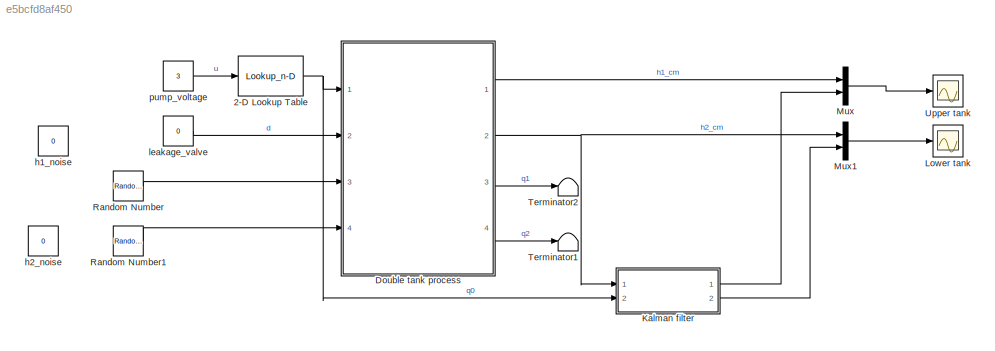
MODEL slx_e5bcfd8af450
KIND model
CONFIG AbsTol = auto
CONFIG EnableMultiTasking = off
CONFIG FixedStep = auto
CONFIG MaxStep = auto
CONFIG MinStep = auto
CONFIG RelTol = 1e-3
CONFIG SampleTimeConstraint = Unconstrained
CONFIG Solver = VariableStepAuto
CONFIG SolverName = VariableStepAuto
CONFIG StartTime = 0.0
CONFIG StopTime = 10.0
BLOCK [Lookup_n-D] 2-D Lookup Table
  BreakpointsForDimension1 = x
  BreakpointsForDimension2 = [1:3]
  NumberOfTableDimensions = 1
  Ports = [1, 1]
  RndMeth = Simplest
  Table = y
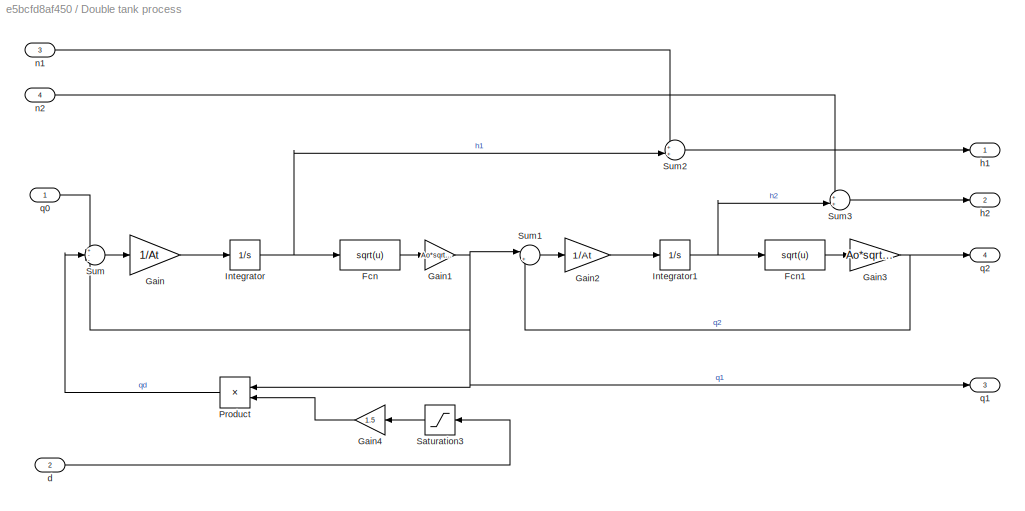
BLOCK [SubSystem] Double tank process
  Ports = [4, 4]
  RequestExecContextInheritance = off
BLOCK [Fcn] Double tank process/Fcn
  Expr = sqrt(u)
BLOCK [Fcn] Double tank process/Fcn1
  Expr = sqrt(u)
BLOCK [Gain] Double tank process/Gain
  Gain = 1/At
  OutDataTypeStr = Inherit: Inherit via internal rule
  ParamDataTypeStr = Inherit: Inherit via internal rule
  SaturateOnIntegerOverflow = off
BLOCK [Gain] Double tank process/Gain1
  Gain = Ao*sqrt(2*981)
  OutDataTypeStr = Inherit: Inherit via internal rule
  ParamDataTypeStr = Inherit: Inherit via internal rule
  SaturateOnIntegerOverflow = off
BLOCK [Gain] Double tank process/Gain2
  Gain = 1/At
  OutDataTypeStr = Inherit: Inherit via internal rule
  ParamDataTypeStr = Inherit: Inherit via internal rule
  SaturateOnIntegerOverflow = off
BLOCK [Gain] Double tank process/Gain3
  Gain = Ao*sqrt(2*981)
  OutDataTypeStr = Inherit: Inherit via internal rule
  ParamDataTypeStr = Inherit: Inherit via internal rule
  SaturateOnIntegerOverflow = off
BLOCK [Gain] Double tank process/Gain4
  Gain = 1.5
  OutDataTypeStr = Inherit: Inherit via internal rule
  ParamDataTypeStr = Inherit: Inherit via internal rule
  SaturateOnIntegerOverflow = off
BLOCK [Integrator] Double tank process/Integrator
  LimitOutput = on
  LowerSaturationLimit = 0
  Ports = [1, 1]
  UpperSaturationLimit = hmax
BLOCK [Integrator] Double tank process/Integrator1
  LimitOutput = on
  LowerSaturationLimit = 0
  Ports = [1, 1]
  UpperSaturationLimit = hmax
BLOCK [Product] Double tank process/Product
  InputSameDT = off
  OutDataTypeStr = Inherit: Inherit via internal rule
  Ports = [2, 1]
  SaturateOnIntegerOverflow = off
BLOCK [Saturate] Double tank process/Saturation3
  InputPortMap = u0
  LowerLimit = 0
  Ports = [1, 1]
  UpperLimit = 1
BLOCK [Sum] Double tank process/Sum
  IconShape = round
  InputSameDT = off
  Inputs = +--
  OutDataTypeStr = Inherit: Inherit via internal rule
  Ports = [3, 1]
  SaturateOnIntegerOverflow = off
BLOCK [Sum] Double tank process/Sum1
  IconShape = round
  InputSameDT = off
  Inputs = |+-
  OutDataTypeStr = Inherit: Inherit via internal rule
  Ports = [2, 1]
  SaturateOnIntegerOverflow = off
BLOCK [Sum] Double tank process/Sum2
  IconShape = round
  InputSameDT = off
  Inputs = ++|
  OutDataTypeStr = Inherit: Inherit via internal rule
  Ports = [2, 1]
  SaturateOnIntegerOverflow = off
BLOCK [Sum] Double tank process/Sum3
  IconShape = round
  InputSameDT = off
  Inputs = ++|
  OutDataTypeStr = Inherit: Inherit via internal rule
  Ports = [2, 1]
  SaturateOnIntegerOverflow = off
BLOCK [Inport] Double tank process/d
  IconDisplay = Port number
  Port = 2
BLOCK [Outport] Double tank process/h1
  IconDisplay = Port number
BLOCK [Outport] Double tank process/h2
  IconDisplay = Port number
  Port = 2
BLOCK [Inport] Double tank process/n1
  IconDisplay = Port number
  Port = 3
BLOCK [Inport] Double tank process/n2
  IconDisplay = Port number
  Port = 4
BLOCK [Inport] Double tank process/q0
  IconDisplay = Port number
BLOCK [Outport] Double tank process/q1
  IconDisplay = Port number
  Port = 3
BLOCK [Outport] Double tank process/q2
  IconDisplay = Port number
  Port = 4
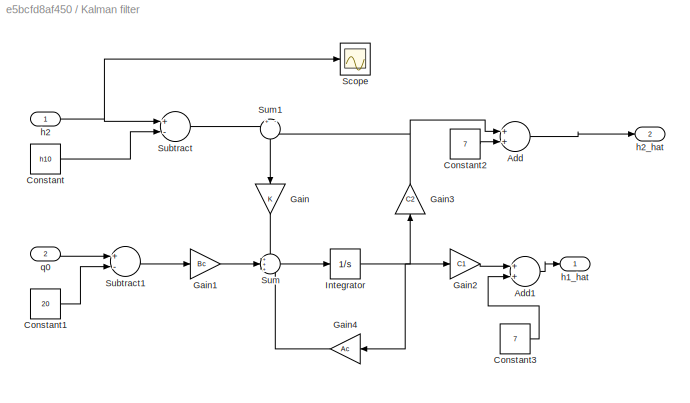
BLOCK [SubSystem] Kalman filter
  Ports = [2, 2]
  RequestExecContextInheritance = off
BLOCK [Sum] Kalman filter/Add
  InputSameDT = off
  OutDataTypeStr = Inherit: Inherit via internal rule
  Ports = [2, 1]
  SaturateOnIntegerOverflow = off
BLOCK [Sum] Kalman filter/Add1
  InputSameDT = off
  OutDataTypeStr = Inherit: Inherit via internal rule
  Ports = [2, 1]
  SaturateOnIntegerOverflow = off
BLOCK [Constant] Kalman filter/Constant
  Value = h10
BLOCK [Constant] Kalman filter/Constant1
  Value = 20
BLOCK [Constant] Kalman filter/Constant2
  Value = 7
BLOCK [Constant] Kalman filter/Constant3
  Value = 7
BLOCK [Gain] Kalman filter/Gain
  Gain = K
  Multiplication = Matrix(K*u)
  OutDataTypeStr = Inherit: Inherit via internal rule
  ParamDataTypeStr = Inherit: Inherit via internal rule
  SaturateOnIntegerOverflow = off
BLOCK [Gain] Kalman filter/Gain1
  Gain = Bc
  Multiplication = Matrix(K*u)
  OutDataTypeStr = Inherit: Inherit via internal rule
  ParamDataTypeStr = Inherit: Inherit via internal rule
  SaturateOnIntegerOverflow = off
BLOCK [Gain] Kalman filter/Gain2
  Gain = C1
  Multiplication = Matrix(K*u)
  OutDataTypeStr = Inherit: Inherit via internal rule
  ParamDataTypeStr = Inherit: Inherit via internal rule
  SaturateOnIntegerOverflow = off
BLOCK [Gain] Kalman filter/Gain3
  Gain = C2
  Multiplication = Matrix(K*u)
  OutDataTypeStr = Inherit: Inherit via internal rule
  ParamDataTypeStr = Inherit: Inherit via internal rule
  SaturateOnIntegerOverflow = off
BLOCK [Gain] Kalman filter/Gain4
  Gain = Ac
  Multiplication = Matrix(K*u)
  OutDataTypeStr = Inherit: Inherit via internal rule
  ParamDataTypeStr = Inherit: Inherit via internal rule
  SaturateOnIntegerOverflow = off
BLOCK [Integrator] Kalman filter/Integrator
  Ports = [1, 1]
BLOCK [Scope] Kalman filter/Scope
  Floating = off
  NumInputPorts = 1
  Ports = [1]
  ScopeSpecificationString = Simulink.scopes.TimeScopeBlockCfg('CurrentConfiguration', extmgr.ConfigurationSet(extmgr.Configuration('Core','General UI',true),extmgr.Configuration('Core','Source UI',true),extmgr.Configuration('Sources','WiredSimulink',true,'DataLoggingVariableName','ScopeData1'),extmgr.Configuration('Visuals','Time Domain',true,'SerializedDisplays',{struct('MinYLimReal','-1.45145','MaxYLimReal','9.18485','YLab...<+1361ch>
BLOCK [Sum] Kalman filter/Subtract
  InputSameDT = off
  Inputs = +-
  OutDataTypeStr = Inherit: Inherit via internal rule
  Ports = [2, 1]
  SaturateOnIntegerOverflow = off
BLOCK [Sum] Kalman filter/Subtract1
  InputSameDT = off
  Inputs = +-
  OutDataTypeStr = Inherit: Inherit via internal rule
  Ports = [2, 1]
  SaturateOnIntegerOverflow = off
BLOCK [Sum] Kalman filter/Sum
  IconShape = round
  InputSameDT = off
  Inputs = +++
  OutDataTypeStr = Inherit: Inherit via internal rule
  Ports = [3, 1]
  SaturateOnIntegerOverflow = off
BLOCK [Sum] Kalman filter/Sum1
  IconShape = round
  InputSameDT = off
  Inputs = +|-
  OutDataTypeStr = Inherit: Inherit via internal rule
  Ports = [2, 1]
  SaturateOnIntegerOverflow = off
BLOCK [Outport] Kalman filter/h1_hat
  IconDisplay = Port number
BLOCK [Inport] Kalman filter/h2
  IconDisplay = Port number
BLOCK [Outport] Kalman filter/h2_hat
  IconDisplay = Port number
  Port = 2
BLOCK [Inport] Kalman filter/q0
  IconDisplay = Port number
  Port = 2
BLOCK [Scope] Lower tank
  Floating = off
  NumInputPorts = 1
  Ports = [1]
  ScopeSpecificationString = Simulink.scopes.TimeScopeBlockCfg('CurrentConfiguration', extmgr.ConfigurationSet(extmgr.Configuration('Core','General UI',true),extmgr.Configuration('Core','Source UI',true),extmgr.Configuration('Sources','WiredSimulink',true,'DataLoggingSaveFormat','StructureWithTime','DataLoggingLimitDataPoints',true,'DataLoggingDecimation','1','DataLoggingDecimateData',true,'DataLoggingVariableName','ScopeData...<+1796ch>
BLOCK [Mux] Mux
  DisplayOption = bar
  Inputs = 2
  Ports = [2, 1]
BLOCK [Mux] Mux1
  DisplayOption = bar
  Inputs = 2
  Ports = [2, 1]
BLOCK [RandomNumber] Random Number
  SampleTime = 0.1
  Variance = 0.1
BLOCK [RandomNumber] Random Number1
  SampleTime = 0.1
  Variance = 0.1
BLOCK [Terminator] Terminator1
BLOCK [Terminator] Terminator2
BLOCK [Scope] Upper tank
  Floating = off
  NumInputPorts = 1
  Ports = [1]
  ScopeSpecificationString = Simulink.scopes.TimeScopeBlockCfg('CurrentConfiguration', extmgr.ConfigurationSet(extmgr.Configuration('Core','General UI',true),extmgr.Configuration('Core','Source UI',true),extmgr.Configuration('Sources','WiredSimulink',true,'DataLoggingVariableName','ScopeData2','DataLoggingSaveFormat','StructureWithTime','DataLoggingLimitDataPoints',true,'DataLoggingDecimation','1','DataLoggingDecimateData',tr...<+1805ch>
BLOCK [Constant] h1_noise
  Value = 0
BLOCK [Constant] h2_noise
  Value = 0
BLOCK [Constant] leakage_valve
  Value = 0
BLOCK [Constant] pump_voltage
  Value = 3
NET 2-D Lookup Table:1 -> Double tank process:1, Kalman filter:2
LINE Double tank process/Fcn1:1 -> Double tank process/Gain3:1
LINE Double tank process/Fcn:1 -> Double tank process/Gain1:1
NET Double tank process/Gain1:1 -> Double tank process/Product:1, Double tank process/Sum1:1, Double tank process/Sum:3, Double tank process/q1:1
LINE Double tank process/Gain2:1 -> Double tank process/Integrator1:1
NET Double tank process/Gain3:1 -> Double tank process/Sum1:2, Double tank process/q2:1
LINE Double tank process/Gain4:1 -> Double tank process/Product:2
LINE Double tank process/Gain:1 -> Double tank process/Integrator:1
NET Double tank process/Integrator1:1 -> Double tank process/Fcn1:1, Double tank process/Sum3:2
NET Double tank process/Integrator:1 -> Double tank process/Fcn:1, Double tank process/Sum2:2
LINE Double tank process/Product:1 -> Double tank process/Sum:2
LINE Double tank process/Saturation3:1 -> Double tank process/Gain4:1
LINE Double tank process/Sum1:1 -> Double tank process/Gain2:1
LINE Double tank process/Sum2:1 -> Double tank process/h1:1
LINE Double tank process/Sum3:1 -> Double tank process/h2:1
LINE Double tank process/Sum:1 -> Double tank process/Gain:1
LINE Double tank process/d:1 -> Double tank process/Saturation3:1
LINE Double tank process/n1:1 -> Double tank process/Sum2:1
LINE Double tank process/n2:1 -> Double tank process/Sum3:1
LINE Double tank process/q0:1 -> Double tank process/Sum:1
LINE Double tank process:1 -> Mux:1
NET Double tank process:2 -> Kalman filter:1, Mux1:1
LINE Double tank process:3 -> Terminator2:1
LINE Double tank process:4 -> Terminator1:1
LINE Kalman filter/Add1:1 -> Kalman filter/h1_hat:1
LINE Kalman filter/Add:1 -> Kalman filter/h2_hat:1
LINE Kalman filter/Constant1:1 -> Kalman filter/Subtract1:2
LINE Kalman filter/Constant2:1 -> Kalman filter/Add:2
LINE Kalman filter/Constant3:1 -> Kalman filter/Add1:2
LINE Kalman filter/Constant:1 -> Kalman filter/Subtract:2
LINE Kalman filter/Gain1:1 -> Kalman filter/Sum:2
LINE Kalman filter/Gain2:1 -> Kalman filter/Add1:1
NET Kalman filter/Gain3:1 -> Kalman filter/Add:1, Kalman filter/Sum1:2
LINE Kalman filter/Gain4:1 -> Kalman filter/Sum:3
LINE Kalman filter/Gain:1 -> Kalman filter/Sum:1
NET Kalman filter/Integrator:1 -> Kalman filter/Gain2:1, Kalman filter/Gain3:1, Kalman filter/Gain4:1
LINE Kalman filter/Subtract1:1 -> Kalman filter/Gain1:1
LINE Kalman filter/Subtract:1 -> Kalman filter/Sum1:1
LINE Kalman filter/Sum1:1 -> Kalman filter/Gain:1
LINE Kalman filter/Sum:1 -> Kalman filter/Integrator:1
NET Kalman filter/h2:1 -> Kalman filter/Scope:1, Kalman filter/Subtract:1
LINE Kalman filter/q0:1 -> Kalman filter/Subtract1:1
LINE Kalman filter:1 -> Mux:2
LINE Kalman filter:2 -> Mux1:2
LINE Mux1:1 -> Lower tank:1
LINE Mux:1 -> Upper tank:1
LINE Random Number1:1 -> Double tank process:4
LINE Random Number:1 -> Double tank process:3
LINE leakage_valve:1 -> Double tank process:2
LINE pump_voltage:1 -> 2-D Lookup Table:1
note: NET lines group one-source signal fan-out (src -> all destinations, sorted); 1:1 wires keep LINE
